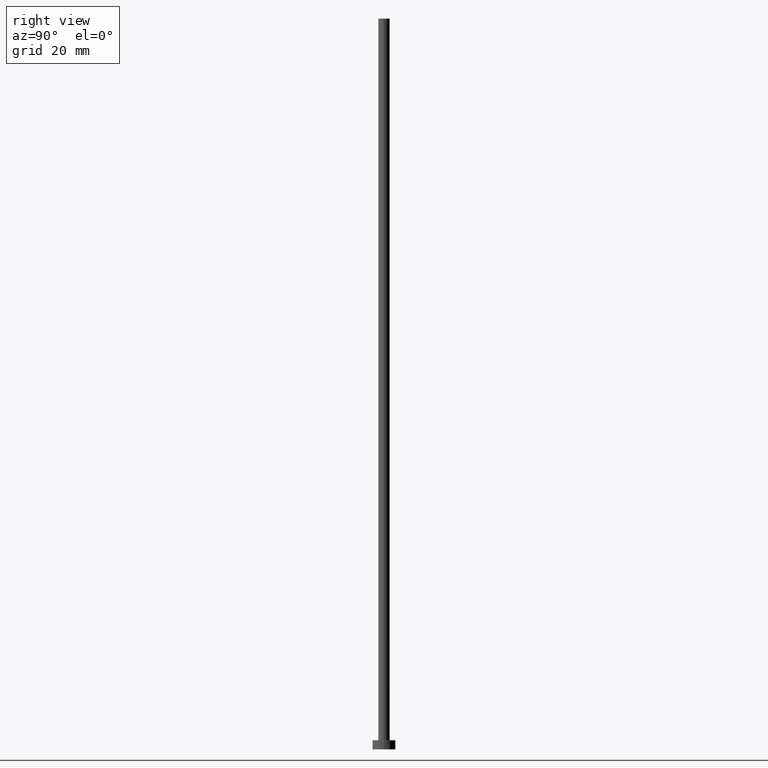
[diagram: clean part render]
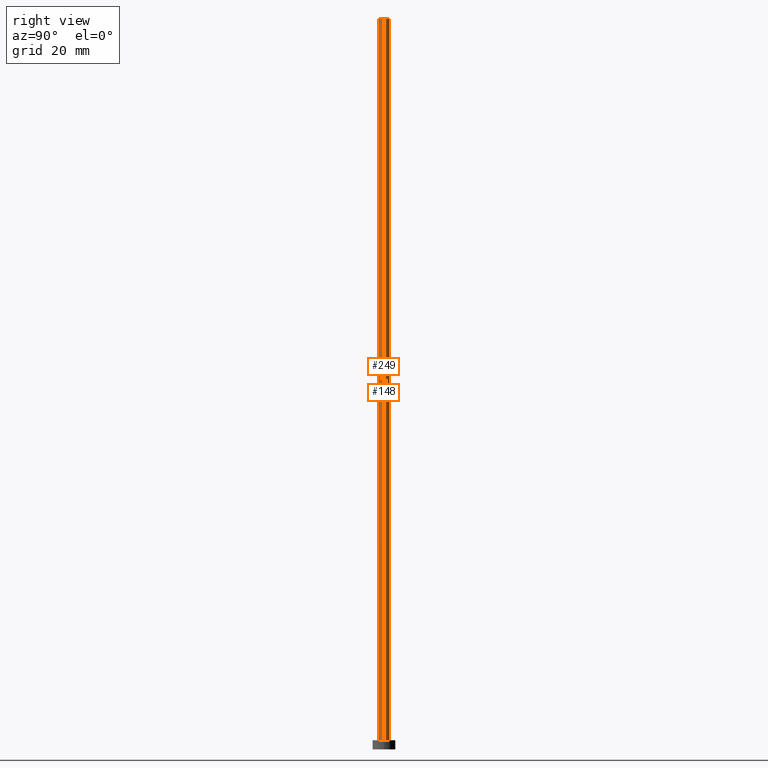
[diagram: same view with one multi-face feature highlighted, each face labeled with its STEP entity id]
A machine part, right view. The highlighted faces form ONE feature: a constant-radius fillet chain: 2 tangent blend faces with common blend radius 1.25 mm. The faces share edges in the B-rep.
Their STEP definitions:
[1] entity #249 (Cylinder):
#4 = FACE_OUTER_BOUND ( 'NONE', #135, .T. ) ;
#13 = CIRCLE ( 'NONE', #82, 1.250000000000000000 ) ;
#15 = DIRECTION ( 'NONE',  ( -0.000000000000000000, -0.000000000000000000, -1.000000000000000000 ) ) ;
#18 = AXIS2_PLACEMENT_3D ( 'NONE', #116, #34, #175 ) ;
#19 = EDGE_CURVE ( 'NONE', #120, #134, #193, .T. ) ;
#34 = DIRECTION ( 'NONE',  ( 0.000000000000000000, 0.000000000000000000, 1.000000000000000000 ) ) ;
#35 = LINE ( 'NONE', #126, #73 ) ;
#36 = LINE ( 'NONE', #205, #152 ) ;
#37 = DIRECTION ( 'NONE',  ( 0.000000000000000000, 0.000000000000000000, 1.000000000000000000 ) ) ;
#39 = DIRECTION ( 'NONE',  ( 1.000000000000000000, 0.000000000000000000, 0.000000000000000000 ) ) ;
#44 = EDGE_CURVE ( 'NONE', #134, #228, #35, .T. ) ;
#47 = AXIS2_PLACEMENT_3D ( 'NONE', #166, #64, #110 ) ;
#64 = DIRECTION ( 'NONE',  ( -0.000000000000000000, -0.000000000000000000, -1.000000000000000000 ) ) ;
#73 = VECTOR ( 'NONE', #121, 1000.000000000000000 ) ;
#82 = AXIS2_PLACEMENT_3D ( 'NONE', #202, #37, #39 ) ;
#92 = ORIENTED_EDGE ( 'NONE', *, *, #44, .F. ) ;
#110 = DIRECTION ( 'NONE',  ( -1.000000000000000000, 0.000000000000000000, 0.000000000000000000 ) ) ;
#116 = CARTESIAN_POINT ( 'NONE',  ( 0.000000000000000000, 0.000000000000000000, 160.0000000000000000 ) ) ;
#120 = VERTEX_POINT ( 'NONE', #231 ) ;
#121 = DIRECTION ( 'NONE',  ( -0.000000000000000000, -0.000000000000000000, -1.000000000000000000 ) ) ;
#126 = CARTESIAN_POINT ( 'NONE',  ( 1.250000000000000000, 1.530808498934191571E-16, 160.0000000000000000 ) ) ;
#130 = EDGE_CURVE ( 'NONE', #227, #228, #13, .T. ) ;
#134 = VERTEX_POINT ( 'NONE', #141 ) ;
#135 = EDGE_LOOP ( 'NONE', ( #92, #136, #171, #200 ) ) ;
#136 = ORIENTED_EDGE ( 'NONE', *, *, #19, .F. ) ;
#140 = EDGE_CURVE ( 'NONE', #120, #227, #36, .T. ) ;
#141 = CARTESIAN_POINT ( 'NONE',  ( 1.250000000000000000, 1.530808498934191571E-16, 160.0000000000000000 ) ) ;
#150 = CARTESIAN_POINT ( 'NONE',  ( 1.250000000000000000, 1.530808498934191571E-16, 2.000000000000000000 ) ) ;
#152 = VECTOR ( 'NONE', #15, 1000.000000000000000 ) ;
#166 = CARTESIAN_POINT ( 'NONE',  ( 0.000000000000000000, 0.000000000000000000, 160.0000000000000000 ) ) ;
#171 = ORIENTED_EDGE ( 'NONE', *, *, #140, .T. ) ;
#175 = DIRECTION ( 'NONE',  ( 1.000000000000000000, 0.000000000000000000, 0.000000000000000000 ) ) ;
#193 = CIRCLE ( 'NONE', #18, 1.250000000000000000 ) ;
#200 = ORIENTED_EDGE ( 'NONE', *, *, #130, .T. ) ;
#202 = CARTESIAN_POINT ( 'NONE',  ( 0.000000000000000000, 0.000000000000000000, 2.000000000000000000 ) ) ;
#205 = CARTESIAN_POINT ( 'NONE',  ( -1.250000000000000000, 0.000000000000000000, 160.0000000000000000 ) ) ;
#224 = CARTESIAN_POINT ( 'NONE',  ( -1.250000000000000000, 0.000000000000000000, 2.000000000000000000 ) ) ;
#227 = VERTEX_POINT ( 'NONE', #224 ) ;
#228 = VERTEX_POINT ( 'NONE', #150 ) ;
#231 = CARTESIAN_POINT ( 'NONE',  ( -1.250000000000000000, 0.000000000000000000, 160.0000000000000000 ) ) ;
#244 = CYLINDRICAL_SURFACE ( 'NONE', #47, 1.250000000000000000 ) ;
#249 = ADVANCED_FACE ( 'NONE', ( #4 ), #244, .T. ) ;
[2] entity #148 (Cylinder):
#15 = DIRECTION ( 'NONE',  ( -0.000000000000000000, -0.000000000000000000, -1.000000000000000000 ) ) ;
#35 = LINE ( 'NONE', #126, #73 ) ;
#36 = LINE ( 'NONE', #205, #152 ) ;
#44 = EDGE_CURVE ( 'NONE', #134, #228, #35, .T. ) ;
#52 = ORIENTED_EDGE ( 'NONE', *, *, #196, .F. ) ;
#54 = FACE_OUTER_BOUND ( 'NONE', #66, .T. ) ;
#55 = CYLINDRICAL_SURFACE ( 'NONE', #91, 1.250000000000000000 ) ;
#57 = CARTESIAN_POINT ( 'NONE',  ( 0.000000000000000000, 0.000000000000000000, 160.0000000000000000 ) ) ;
#59 = CARTESIAN_POINT ( 'NONE',  ( 0.000000000000000000, 0.000000000000000000, 160.0000000000000000 ) ) ;
#66 = EDGE_LOOP ( 'NONE', ( #52, #197, #212, #177 ) ) ;
#73 = VECTOR ( 'NONE', #121, 1000.000000000000000 ) ;
#91 = AXIS2_PLACEMENT_3D ( 'NONE', #59, #125, #255 ) ;
#94 = CARTESIAN_POINT ( 'NONE',  ( 0.000000000000000000, 0.000000000000000000, 2.000000000000000000 ) ) ;
#95 = AXIS2_PLACEMENT_3D ( 'NONE', #94, #160, #101 ) ;
#97 = CIRCLE ( 'NONE', #239, 1.250000000000000000 ) ;
#100 = DIRECTION ( 'NONE',  ( 0.000000000000000000, 0.000000000000000000, 1.000000000000000000 ) ) ;
#101 = DIRECTION ( 'NONE',  ( 1.000000000000000000, 0.000000000000000000, 0.000000000000000000 ) ) ;
#106 = EDGE_CURVE ( 'NONE', #228, #227, #161, .T. ) ;
#120 = VERTEX_POINT ( 'NONE', #231 ) ;
#121 = DIRECTION ( 'NONE',  ( -0.000000000000000000, -0.000000000000000000, -1.000000000000000000 ) ) ;
#125 = DIRECTION ( 'NONE',  ( -0.000000000000000000, -0.000000000000000000, -1.000000000000000000 ) ) ;
#126 = CARTESIAN_POINT ( 'NONE',  ( 1.250000000000000000, 1.530808498934191571E-16, 160.0000000000000000 ) ) ;
#134 = VERTEX_POINT ( 'NONE', #141 ) ;
#140 = EDGE_CURVE ( 'NONE', #120, #227, #36, .T. ) ;
#141 = CARTESIAN_POINT ( 'NONE',  ( 1.250000000000000000, 1.530808498934191571E-16, 160.0000000000000000 ) ) ;
#148 = ADVANCED_FACE ( 'NONE', ( #54 ), #55, .T. ) ;
#150 = CARTESIAN_POINT ( 'NONE',  ( 1.250000000000000000, 1.530808498934191571E-16, 2.000000000000000000 ) ) ;
#152 = VECTOR ( 'NONE', #15, 1000.000000000000000 ) ;
#160 = DIRECTION ( 'NONE',  ( 0.000000000000000000, 0.000000000000000000, 1.000000000000000000 ) ) ;
#161 = CIRCLE ( 'NONE', #95, 1.250000000000000000 ) ;
#177 = ORIENTED_EDGE ( 'NONE', *, *, #140, .F. ) ;
#181 = DIRECTION ( 'NONE',  ( 1.000000000000000000, 0.000000000000000000, 0.000000000000000000 ) ) ;
#196 = EDGE_CURVE ( 'NONE', #134, #120, #97, .T. ) ;
#197 = ORIENTED_EDGE ( 'NONE', *, *, #44, .T. ) ;
#205 = CARTESIAN_POINT ( 'NONE',  ( -1.250000000000000000, 0.000000000000000000, 160.0000000000000000 ) ) ;
#212 = ORIENTED_EDGE ( 'NONE', *, *, #106, .T. ) ;
#224 = CARTESIAN_POINT ( 'NONE',  ( -1.250000000000000000, 0.000000000000000000, 2.000000000000000000 ) ) ;
#227 = VERTEX_POINT ( 'NONE', #224 ) ;
#228 = VERTEX_POINT ( 'NONE', #150 ) ;
#231 = CARTESIAN_POINT ( 'NONE',  ( -1.250000000000000000, 0.000000000000000000, 160.0000000000000000 ) ) ;
#239 = AXIS2_PLACEMENT_3D ( 'NONE', #57, #100, #181 ) ;
#255 = DIRECTION ( 'NONE',  ( -1.000000000000000000, 0.000000000000000000, 0.000000000000000000 ) ) ;